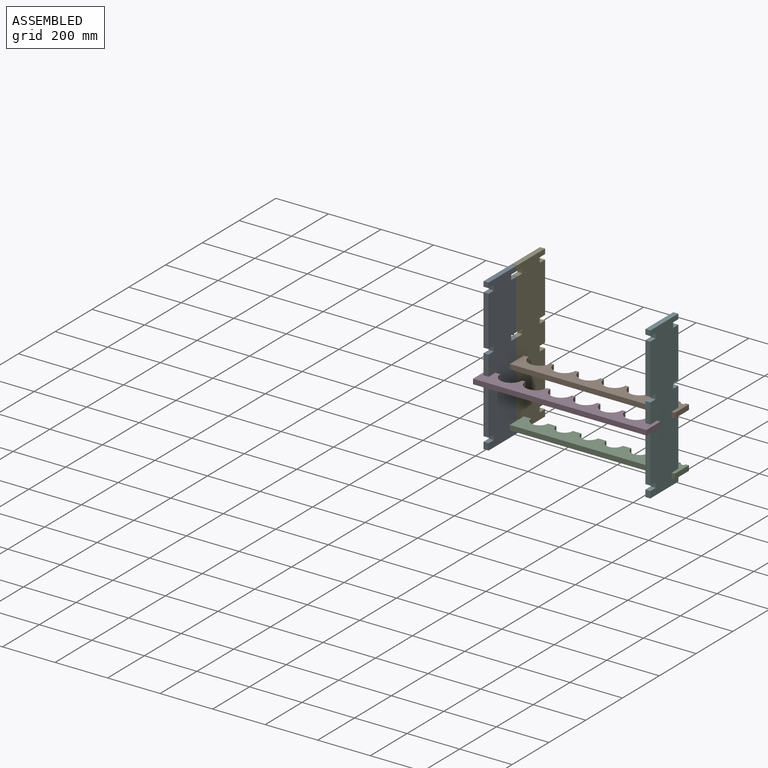
[diagram: assembled view]
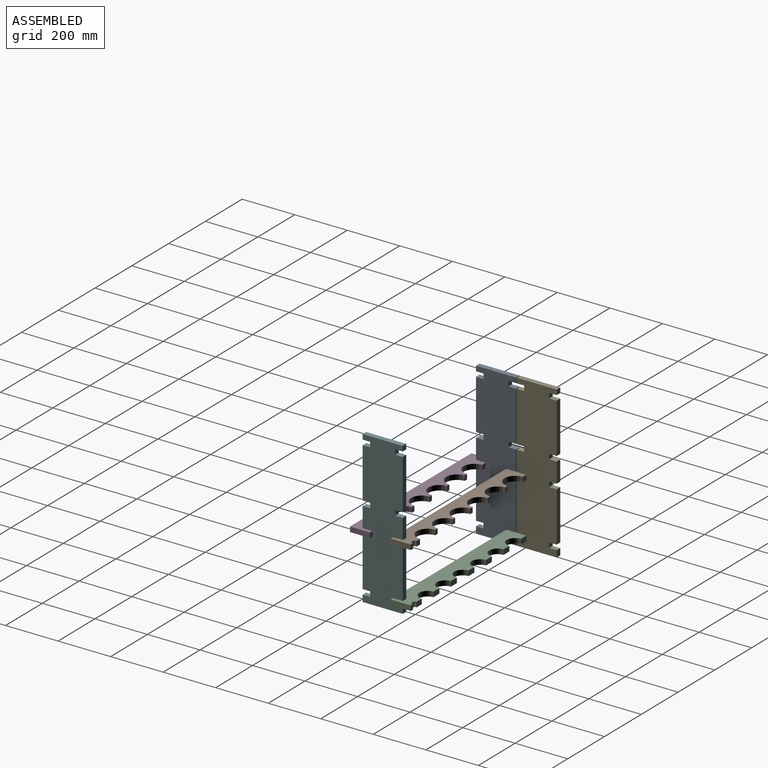
[diagram: assembled view, second angle]
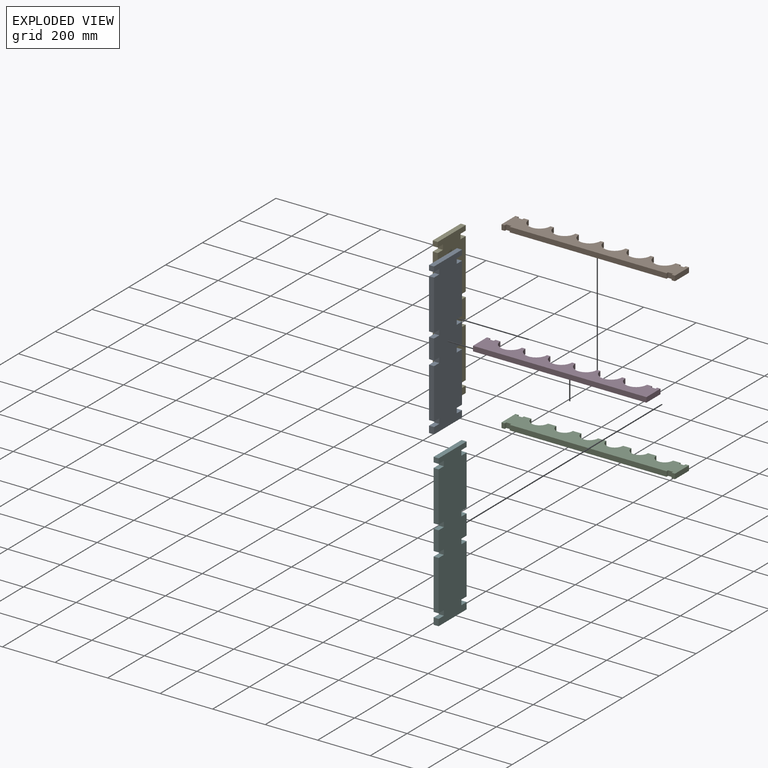
[diagram: exploded view]
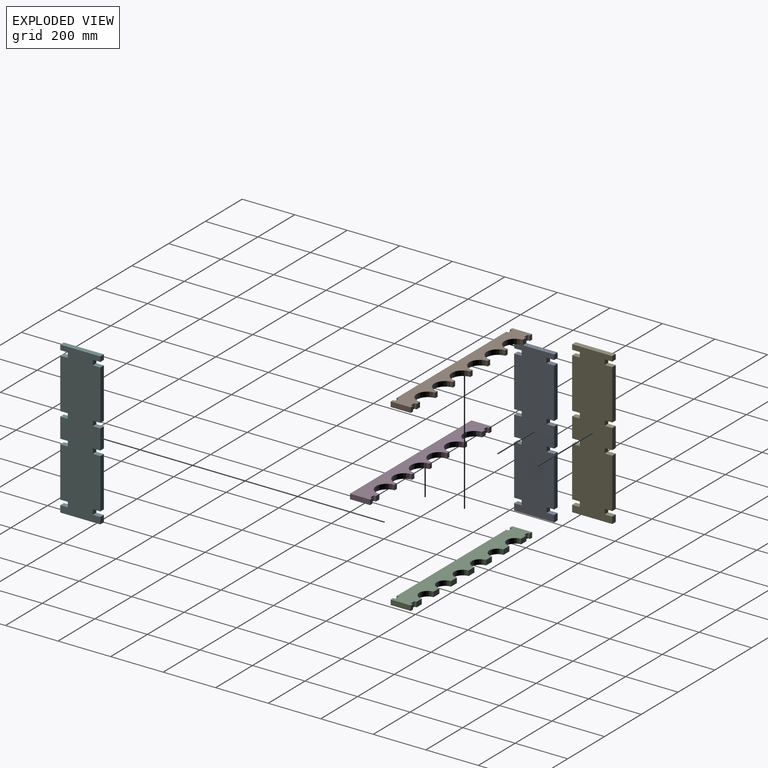
[diagram: exploded view, second angle]
ASSEMBLY  parts=6 mates=15
PART A: 38 faces, bbox 19.1x152.4x577.9 mm
  f0: plane 19.05x19.05mm, normal (0,-1,0), area 362.9mm2, adj f1,f35,f36,f37
  f1: plane 28.58x19.05mm, normal (0,0,-1), area 544.4mm2, adj f0,f2,f36,f37
  f2: plane 19.05x19.05mm, normal (0,-1,0), area 362.9mm2, adj f1,f3,f36,f37
  f3: plane 28.58x19.05mm, normal (0,0,1), area 544.4mm2, adj f2,f4,f36,f37
  f4: plane 190.5x19.05mm, normal (0,-1,0), area 3629mm2, adj f3,f5,f36,f37
  f5: plane 28.58x19.05mm, normal (0,0,-1), area 544.4mm2, adj f4,f6,f36,f37
  f6: plane 19.05x19.05mm, normal (0,-1,0), area 362.9mm2, adj f5,f7,f36,f37
  f7: plane 28.58x19.05mm, normal (0,0,1), area 544.4mm2, adj f6,f8,f36,f37
  f8: plane 76.2x19.05mm, normal (0,-1,0), area 1451.6mm2, adj f7,f9,f36,f37
  f9: plane 28.58x19.05mm, normal (0,0,-1), area 544.4mm2, adj f8,f10,f36,f37
  f10: plane 19.05x19.05mm, normal (0,-1,0), area 362.9mm2, adj f9,f11,f36,f37
  f11: plane 28.58x19.05mm, normal (0,0,1), area 544.4mm2, adj f10,f12,f36,f37
  f12: plane 190.5x19.05mm, normal (0,-1,0), area 3629mm2, adj f11,f13,f36,f37
  f13: plane 28.58x19.05mm, normal (0,0,-1), area 544.4mm2, adj f12,f14,f36,f37
  f14: plane 19.05x19.05mm, normal (0,-1,0), area 362.9mm2, adj f13,f15,f36,f37
  f15: plane 28.58x19.05mm, normal (0,0,1), area 544.4mm2, adj f14,f16,f36,f37
  f16: plane 25.4x19.05mm, normal (0,-1,0), area 483.9mm2, adj f15,f17,f36,f37
  f17: plane 152.4x19.05mm, normal (0,0,-1), area 2903.2mm2, adj f16,f18,f36,f37
  f18: plane 25.4x19.05mm, normal (0,1,0), area 483.9mm2, adj f17,f19,f36,f37
  f19: plane 28.58x19.05mm, normal (0,0,1), area 544.4mm2, adj f18,f20,f36,f37
  f20: plane 19.05x19.05mm, normal (0,1,0), area 362.9mm2, adj f19,f21,f36,f37
  f21: plane 28.58x19.05mm, normal (0,0,-1), area 544.4mm2, adj f20,f22,f36,f37
  f22: plane 190.5x19.05mm, normal (0,1,0), area 3629mm2, adj f21,f23,f36,f37
  f23: plane 28.58x19.05mm, normal (0,0,1), area 544.4mm2, adj f22,f24,f36,f37
  f24: plane 19.05x19.05mm, normal (0,1,0), area 362.9mm2, adj f23,f25,f36,f37
  f25: plane 28.58x19.05mm, normal (0,0,-1), area 544.4mm2, adj f24,f26,f36,f37
  f26: plane 76.2x19.05mm, normal (0,1,0), area 1451.6mm2, adj f25,f27,f36,f37
  f27: plane 28.58x19.05mm, normal (0,0,1), area 544.4mm2, adj f26,f28,f36,f37
  f28: plane 19.05x19.05mm, normal (0,1,0), area 362.9mm2, adj f27,f29,f36,f37
  f29: plane 28.58x19.05mm, normal (0,0,-1), area 544.4mm2, adj f28,f30,f36,f37
  f30: plane 190.5x19.05mm, normal (0,1,0), area 3629mm2, adj f29,f31,f36,f37
  f31: plane 28.58x19.05mm, normal (0,0,1), area 544.4mm2, adj f30,f32,f36,f37
  f32: plane 19.05x19.05mm, normal (0,1,0), area 362.9mm2, adj f31,f33,f36,f37
  f33: plane 28.58x19.05mm, normal (0,0,-1), area 544.4mm2, adj f32,f34,f36,f37
  f34: plane 19.05x19.05mm, normal (0,1,0), area 362.9mm2, adj f33,f35,f36,f37
  f35: plane 152.4x19.05mm, normal (0,0,1), area 2903.2mm2, adj f0,f34,f36,f37
  f36: plane 577.85x152.4mm, normal (1,0,0), area 83709.5mm2, adj f0,f1,f2,f3,f4,f5,f6,f7
  f37: plane 577.85x152.4mm, normal (-1,0,0), area 83709.5mm2, adj f0,f1,f2,f3,f4,f5,f6,f7
PART B: 34 faces, bbox 660.4x76.2x19.1 mm
  f0: plane 19.05x12.7mm, normal (0,-1,0), area 241.9mm2, adj f1,f31,f32,f33
  f1: plane 19.05x8.26mm, normal (1,0,0), area 157.3mm2, adj f0,f2,f32,f33
  f2: plane 19.05x19.05mm, normal (0,-1,0), area 362.9mm2, adj f1,f3,f32,f33
  f3: plane 19.05x8.26mm, normal (-1,0,0), area 157.3mm2, adj f2,f4,f32,f33
  f4: plane 596.9x19.05mm, normal (0,-1,0), area 11370.9mm2, adj f3,f5,f32,f33
  f5: plane 19.05x8.26mm, normal (1,0,0), area 157.3mm2, adj f4,f6,f32,f33
  f6: plane 19.05x19.05mm, normal (0,-1,0), area 362.9mm2, adj f5,f7,f32,f33
  f7: plane 19.05x8.26mm, normal (-1,0,0), area 157.3mm2, adj f6,f8,f32,f33
  f8: plane 19.05x12.7mm, normal (0,-1,0), area 241.9mm2, adj f7,f9,f32,f33
  f9: plane 76.2x19.05mm, normal (1,0,0), area 1451.6mm2, adj f8,f10,f32,f33
  f10: plane 19.05x12.7mm, normal (0,1,0), area 241.9mm2, adj f9,f11,f32,f33
  f11: plane 19.05x8.26mm, normal (-1,0,0), area 157.3mm2, adj f10,f12,f32,f33
  f12: plane 19.05x19.05mm, normal (0,1,0), area 362.9mm2, adj f11,f13,f32,f33
  f13: plane 19.05x8.26mm, normal (1,0,0), area 157.3mm2, adj f12,f14,f32,f33
  f14: plane 19.05x19.05mm, normal (0,1,0), area 362.9mm2, adj f13,f15,f32,f33
  f15: cylinder r=41.27mm len=82.55mm, axis (0,0,-1), area 2470.2mm2, adj f14,f16,f32,f33
  f16: plane 19.05x12.7mm, normal (0,1,0), area 241.9mm2, adj f15,f17,f32,f33
  f17: cylinder r=41.27mm len=82.55mm, axis (0,0,-1), area 2470.2mm2, adj f16,f18,f32,f33
  f18: plane 19.05x12.7mm, normal (0,1,0), area 241.9mm2, adj f17,f19,f32,f33
  f19: cylinder r=41.27mm len=82.55mm, axis (0,0,-1), area 2470.2mm2, adj f18,f20,f32,f33
  f20: plane 19.05x12.7mm, normal (0,1,0), area 241.9mm2, adj f19,f21,f32,f33
  f21: cylinder r=41.27mm len=82.55mm, axis (0,0,-1), area 2470.2mm2, adj f20,f22,f32,f33
  f22: plane 19.05x12.7mm, normal (0,1,0), area 241.9mm2, adj f21,f23,f32,f33
  f23: cylinder r=41.27mm len=82.55mm, axis (0,0,-1), area 2470.2mm2, adj f22,f24,f32,f33
  f24: plane 19.05x12.7mm, normal (0,1,0), area 241.9mm2, adj f23,f25,f32,f33
  f25: cylinder r=41.27mm len=82.55mm, axis (0,0,-1), area 2470.2mm2, adj f24,f26,f32,f33
  f26: plane 19.05x19.05mm, normal (0,1,0), area 362.9mm2, adj f25,f27,f32,f33
  f27: plane 19.05x8.26mm, normal (-1,0,0), area 157.3mm2, adj f26,f28,f32,f33
  f28: plane 19.05x19.05mm, normal (0,1,0), area 362.9mm2, adj f27,f29,f32,f33
  f29: plane 19.05x8.26mm, normal (1,0,0), area 157.3mm2, adj f28,f30,f32,f33
  f30: plane 19.05x12.7mm, normal (0,1,0), area 241.9mm2, adj f29,f31,f32,f33
  f31: plane 76.2x19.05mm, normal (-1,0,0), area 1451.6mm2, adj f0,f30,f32,f33
  f32: plane 660.4x76.2mm, normal (0,0,1), area 33637.2mm2, adj f0,f1,f2,f3,f4,f5,f6,f7
  f33: plane 660.4x76.2mm, normal (0,0,-1), area 33637.2mm2, adj f0,f1,f2,f3,f4,f5,f6,f7
PART C: 34 faces, bbox 660.4x76.2x19.1 mm
  f0: plane 19.05x12.7mm, normal (0,-1,0), area 241.9mm2, adj f1,f31,f32,f33
  f1: plane 19.05x8.26mm, normal (1,0,0), area 157.3mm2, adj f0,f2,f32,f33
  f2: plane 19.05x19.05mm, normal (0,-1,0), area 362.9mm2, adj f1,f3,f32,f33
  f3: plane 19.05x8.26mm, normal (-1,0,0), area 157.3mm2, adj f2,f4,f32,f33
  f4: plane 596.9x19.05mm, normal (0,-1,0), area 11370.9mm2, adj f3,f5,f32,f33
  f5: plane 19.05x8.26mm, normal (1,0,0), area 157.3mm2, adj f4,f6,f32,f33
  f6: plane 19.05x19.05mm, normal (0,-1,0), area 362.9mm2, adj f5,f7,f32,f33
  f7: plane 19.05x8.26mm, normal (-1,0,0), area 157.3mm2, adj f6,f8,f32,f33
  f8: plane 19.05x12.7mm, normal (0,-1,0), area 241.9mm2, adj f7,f9,f32,f33
  f9: plane 76.2x19.05mm, normal (1,0,0), area 1451.6mm2, adj f8,f10,f32,f33
  f10: plane 19.05x12.7mm, normal (0,1,0), area 241.9mm2, adj f9,f11,f32,f33
  f11: plane 19.05x8.26mm, normal (-1,0,0), area 157.3mm2, adj f10,f12,f32,f33
  f12: plane 19.05x19.05mm, normal (0,1,0), area 362.9mm2, adj f11,f13,f32,f33
  f13: plane 19.05x8.26mm, normal (1,0,0), area 157.3mm2, adj f12,f14,f32,f33
  f14: plane 28.58x19.05mm, normal (0,1,0), area 544.4mm2, adj f13,f15,f32,f33
  f15: cylinder r=31.75mm len=63.5mm, axis (0,0,-1), area 1900.2mm2, adj f14,f16,f32,f33
  f16: plane 31.75x19.05mm, normal (0,1,0), area 604.8mm2, adj f15,f17,f32,f33
  f17: cylinder r=31.75mm len=63.5mm, axis (0,0,-1), area 1900.2mm2, adj f16,f18,f32,f33
  f18: plane 31.75x19.05mm, normal (0,1,0), area 604.8mm2, adj f17,f19,f32,f33
  f19: cylinder r=31.75mm len=63.5mm, axis (0,0,-1), area 1900.2mm2, adj f18,f20,f32,f33
  f20: plane 31.75x19.05mm, normal (0,1,0), area 604.8mm2, adj f19,f21,f32,f33
  f21: cylinder r=31.75mm len=63.5mm, axis (0,0,-1), area 1900.2mm2, adj f20,f22,f32,f33
  f22: plane 31.75x19.05mm, normal (0,1,0), area 604.8mm2, adj f21,f23,f32,f33
  f23: cylinder r=31.75mm len=63.5mm, axis (0,0,-1), area 1900.2mm2, adj f22,f24,f32,f33
  f24: plane 31.75x19.05mm, normal (0,1,0), area 604.8mm2, adj f23,f25,f32,f33
  f25: cylinder r=31.75mm len=63.5mm, axis (0,0,-1), area 1900.2mm2, adj f24,f26,f32,f33
  f26: plane 28.58x19.05mm, normal (0,1,0), area 544.4mm2, adj f25,f27,f32,f33
  f27: plane 19.05x8.26mm, normal (-1,0,0), area 157.3mm2, adj f26,f28,f32,f33
  f28: plane 19.05x19.05mm, normal (0,1,0), area 362.9mm2, adj f27,f29,f32,f33
  f29: plane 19.05x8.26mm, normal (1,0,0), area 157.3mm2, adj f28,f30,f32,f33
  f30: plane 19.05x12.7mm, normal (0,1,0), area 241.9mm2, adj f29,f31,f32,f33
  f31: plane 76.2x19.05mm, normal (-1,0,0), area 1451.6mm2, adj f0,f30,f32,f33
  f32: plane 660.4x76.2mm, normal (0,0,1), area 40192.7mm2, adj f0,f1,f2,f3,f4,f5,f6,f7
  f33: plane 660.4x76.2mm, normal (0,0,-1), area 40192.7mm2, adj f0,f1,f2,f3,f4,f5,f6,f7
PART D: 26 faces, bbox 660.4x76.2x19.1 mm
  f0: plane 660.4x19.05mm, normal (0,-1,0), area 12580.6mm2, adj f1,f23,f24,f25
  f1: plane 76.2x19.05mm, normal (1,0,0), area 1451.6mm2, adj f0,f2,f24,f25
  f2: plane 19.05x12.7mm, normal (0,1,0), area 241.9mm2, adj f1,f3,f24,f25
  f3: plane 19.05x8.26mm, normal (-1,0,0), area 157.3mm2, adj f2,f4,f24,f25
  f4: plane 19.05x19.05mm, normal (0,1,0), area 362.9mm2, adj f3,f5,f24,f25
  f5: plane 19.05x8.26mm, normal (1,0,0), area 157.3mm2, adj f4,f6,f24,f25
  f6: plane 19.05x19.05mm, normal (0,1,0), area 362.9mm2, adj f5,f7,f24,f25
  f7: cylinder r=41.27mm len=82.55mm, axis (0,0,-1), area 2470.2mm2, adj f6,f8,f24,f25
  f8: plane 19.05x12.7mm, normal (0,1,0), area 241.9mm2, adj f7,f9,f24,f25
  f9: cylinder r=41.27mm len=82.55mm, axis (0,0,-1), area 2470.2mm2, adj f8,f10,f24,f25
  f10: plane 19.05x12.7mm, normal (0,1,0), area 241.9mm2, adj f9,f11,f24,f25
  f11: cylinder r=41.27mm len=82.55mm, axis (0,0,-1), area 2470.2mm2, adj f10,f12,f24,f25
  f12: plane 19.05x12.7mm, normal (0,1,0), area 241.9mm2, adj f11,f13,f24,f25
  f13: cylinder r=41.27mm len=82.55mm, axis (0,0,-1), area 2470.2mm2, adj f12,f14,f24,f25
  f14: plane 19.05x12.7mm, normal (0,1,0), area 241.9mm2, adj f13,f15,f24,f25
  f15: cylinder r=41.27mm len=82.55mm, axis (0,0,-1), area 2470.2mm2, adj f14,f16,f24,f25
  f16: plane 19.05x12.7mm, normal (0,1,0), area 241.9mm2, adj f15,f17,f24,f25
  f17: cylinder r=41.27mm len=82.55mm, axis (0,0,-1), area 2470.2mm2, adj f16,f18,f24,f25
  f18: plane 19.05x19.05mm, normal (0,1,0), area 362.9mm2, adj f17,f19,f24,f25
  f19: plane 19.05x8.26mm, normal (-1,0,0), area 157.3mm2, adj f18,f20,f24,f25
  f20: plane 19.05x19.05mm, normal (0,1,0), area 362.9mm2, adj f19,f21,f24,f25
  f21: plane 19.05x8.26mm, normal (1,0,0), area 157.3mm2, adj f20,f22,f24,f25
  f22: plane 19.05x12.7mm, normal (0,1,0), area 241.9mm2, adj f21,f23,f24,f25
  f23: plane 76.2x19.05mm, normal (-1,0,0), area 1451.6mm2, adj f0,f22,f24,f25
  f24: plane 660.4x76.2mm, normal (0,0,1), area 33951.7mm2, adj f0,f1,f2,f3,f4,f5,f6,f7
  f25: plane 660.4x76.2mm, normal (0,0,-1), area 33951.7mm2, adj f0,f1,f2,f3,f4,f5,f6,f7
PART E: same geometry as A
PART F: same geometry as A
PLACE A t=(-590.61,-369.44,546.23)mm
PLACE B t=(-603.31,-253.87,203.33)mm
PLACE C t=(-603.31,-253.87,-6.22)mm
PLACE D t=(-603.31,-408.81,203.33)mm
PLACE E t=(-590.61,-214.5,546.23)mm
PLACE F t=(25.34,-369.44,546.23)mm
MATE planar D.f4 <-> A.f10  axis (0,1,0) through (34.87,-340.86,212.86)mm
MATE planar F.f20 <-> C.f6  axis (0,1,0) through (34.87,-245.61,3.31)mm
MATE planar A.f36 <-> B.f27  axis (1,0,0) through (-571.56,-293.24,257.14)mm
MATE planar F.f37 <-> D.f5  axis (-1,0,0) through (25.34,-217.04,108.08)mm
MATE planar D.f24 <-> F.f9  axis (0,0,1) through (6.29,-332.61,222.38)mm
MATE planar E.f37 <-> C.f29  axis (-1,0,0) through (-590.61,-90.67,12.83)mm
MATE planar F.f37 <-> C.f13  axis (-1,0,0) through (25.34,-369.44,108.08)mm
MATE planar B.f32 <-> A.f25  axis (0,0,1) through (-571.56,-245.61,222.38)mm
MATE planar E.f14 <-> C.f28  axis (0,-1,0) through (-581.08,-185.92,3.31)mm
MATE planar E.f13 <-> C.f32  axis (0,0,-1) through (-581.08,-200.21,12.83)mm
MATE planar C.f3 <-> A.f36  axis (-1,0,0) through (-571.56,-249.74,-6.22)mm
MATE planar A.f21 <-> C.f32  axis (0,0,-1) through (-581.08,-231.32,12.83)mm
MATE planar F.f21 <-> C.f32  axis (0,0,-1) through (34.87,-231.32,12.83)mm
MATE planar C.f2 <-> A.f20  axis (0,-1,0) through (-581.08,-245.61,3.31)mm
MATE planar A.f24 <-> B.f2  axis (0,1,0) through (-581.08,-245.61,212.86)mm
